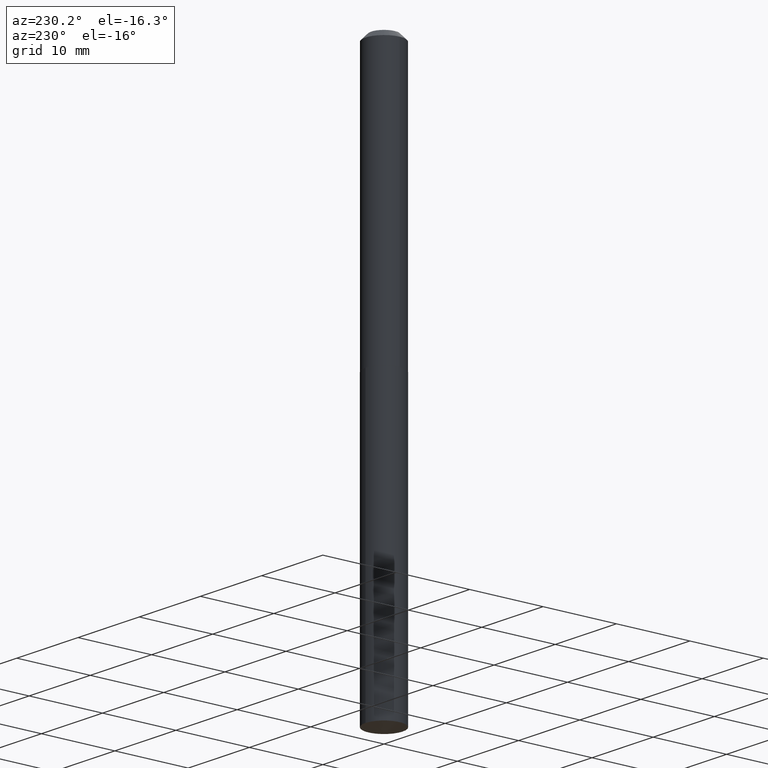
[diagram: clean part render]
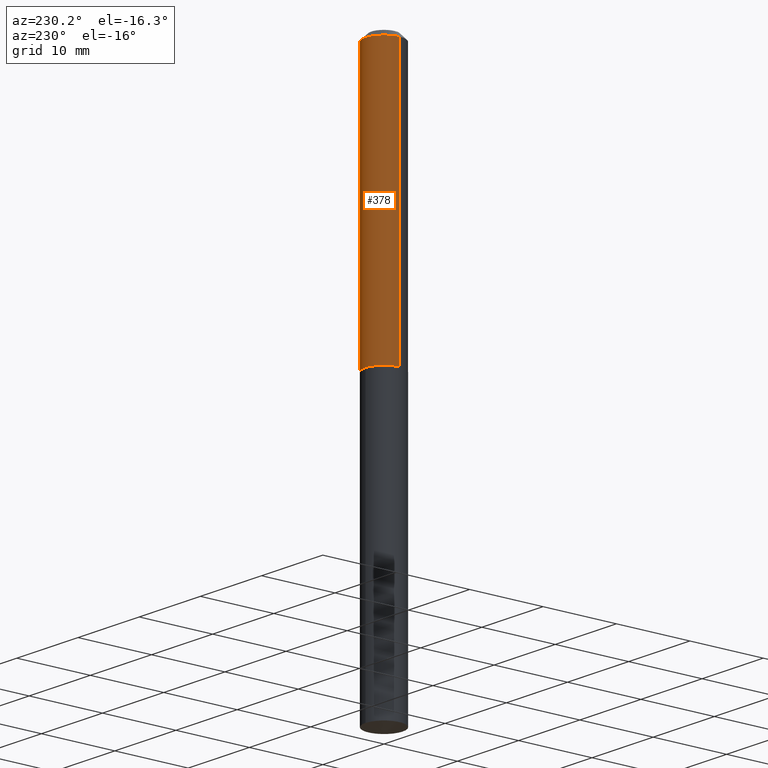
[diagram: same view with one face highlighted and labeled with its STEP entity id]
A machine part, auxiliary view. The second image highlights one B-rep face of the part: STEP entity #378.
In plain terms, the highlighted cylindrical surface (edge-blend (fillet) strip) has radius 2.5273 mm, axis along (-0, 0, 1).
Its self-contained STEP definition (entity closure, byte-faithful):
#7 = CARTESIAN_POINT ( 'NONE',  ( 0.000000000000000000, 0.000000000000000000, 0.000000000000000000 ) ) ;
#20 = EDGE_CURVE ( 'NONE', #152, #95, #140, .T. ) ;
#37 = EDGE_LOOP ( 'NONE', ( #212, #308, #337, #62 ) ) ;
#41 = CARTESIAN_POINT ( 'NONE',  ( -0.09950000000000000511, -1.876269733495272342E-15, -0.03125000000000019429 ) ) ;
#49 = DIRECTION ( 'NONE',  ( -2.445468806185136877E-29, 3.491481338843145188E-15, 1.000000000000000000 ) ) ;
#62 = ORIENTED_EDGE ( 'NONE', *, *, #375, .F. ) ;
#63 = DIRECTION ( 'NONE',  ( -2.445468806185136597E-29, 3.491481338843145583E-15, 1.000000000000000000 ) ) ;
#64 = VERTEX_POINT ( 'NONE', #283 ) ;
#69 = VERTEX_POINT ( 'NONE', #228 ) ;
#84 = DIRECTION ( 'NONE',  ( 1.000000000000000000, -6.982962677686266711E-15, 0.000000000000000000 ) ) ;
#90 = CARTESIAN_POINT ( 'NONE',  ( 3.542261565759171006E-29, -5.057410719314297787E-15, -1.448500000000000343 ) ) ;
#95 = VERTEX_POINT ( 'NONE', #41 ) ;
#116 = VECTOR ( 'NONE', #49, 39.37007874015748143 ) ;
#118 = AXIS2_PLACEMENT_3D ( 'NONE', #90, #187, #84 ) ;
#125 = AXIS2_PLACEMENT_3D ( 'NONE', #215, #151, #236 ) ;
#140 = LINE ( 'NONE', #338, #116 ) ;
#151 = DIRECTION ( 'NONE',  ( -2.445468806185136597E-29, 3.491481338843145583E-15, 1.000000000000000000 ) ) ;
#152 = VERTEX_POINT ( 'NONE', #310 ) ;
#157 = DIRECTION ( 'NONE',  ( -2.445468806185136877E-29, 3.491481338843145188E-15, 1.000000000000000000 ) ) ;
#159 = CYLINDRICAL_SURFACE ( 'NONE', #358, 0.09950000000000008837 ) ;
#187 = DIRECTION ( 'NONE',  ( -2.445468806185136597E-29, 3.491481338843145583E-15, 1.000000000000000000 ) ) ;
#190 = CIRCLE ( 'NONE', #118, 0.09950000000000017164 ) ;
#206 = DIRECTION ( 'NONE',  ( 1.000000000000000000, -6.982962677686266711E-15, 4.876176775795936353E-29 ) ) ;
#212 = ORIENTED_EDGE ( 'NONE', *, *, #388, .T. ) ;
#215 = CARTESIAN_POINT ( 'NONE',  ( 7.642090019328598283E-31, -1.091087918388489651E-16, -0.03125000000000019429 ) ) ;
#228 = CARTESIAN_POINT ( 'NONE',  ( 0.09950000000000017164, -5.752215505744083029E-15, -1.448500000000000343 ) ) ;
#236 = DIRECTION ( 'NONE',  ( 1.000000000000000000, -6.982962677686266711E-15, 0.000000000000000000 ) ) ;
#283 = CARTESIAN_POINT ( 'NONE',  ( 0.09950000000000000511, -8.039135782686324687E-16, -0.03125000000000019429 ) ) ;
#308 = ORIENTED_EDGE ( 'NONE', *, *, #20, .T. ) ;
#310 = CARTESIAN_POINT ( 'NONE',  ( -0.09950000000000017164, -4.350420697232997080E-15, -1.448500000000000343 ) ) ;
#330 = CARTESIAN_POINT ( 'NONE',  ( 0.09950000000000008837, -6.948047864297841570E-16, 4.851795891916960794E-30 ) ) ;
#337 = ORIENTED_EDGE ( 'NONE', *, *, #352, .F. ) ;
#338 = CARTESIAN_POINT ( 'NONE',  ( -0.09950000000000008837, 7.069900220813003129E-16, -4.894340414803635936E-30 ) ) ;
#352 = EDGE_CURVE ( 'NONE', #64, #95, #363, .T. ) ;
#358 = AXIS2_PLACEMENT_3D ( 'NONE', #7, #63, #206 ) ;
#360 = FACE_OUTER_BOUND ( 'NONE', #37, .T. ) ;
#362 = LINE ( 'NONE', #330, #381 ) ;
#363 = CIRCLE ( 'NONE', #125, 0.09950000000000000511 ) ;
#375 = EDGE_CURVE ( 'NONE', #69, #64, #362, .T. ) ;
#378 = ADVANCED_FACE ( 'NONE', ( #360 ), #159, .T. ) ;
#381 = VECTOR ( 'NONE', #157, 39.37007874015748143 ) ;
#388 = EDGE_CURVE ( 'NONE', #69, #152, #190, .T. ) ;